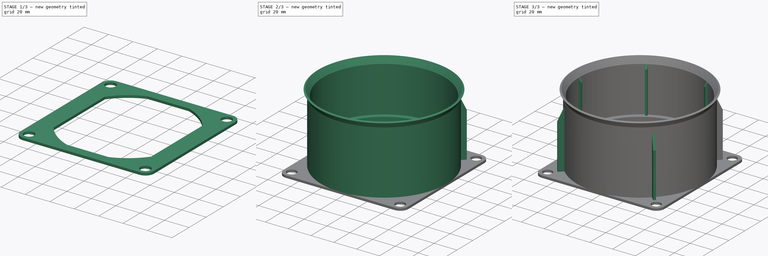
[diagram: build sequence overview — one tinted view per stage of 3, left to right]
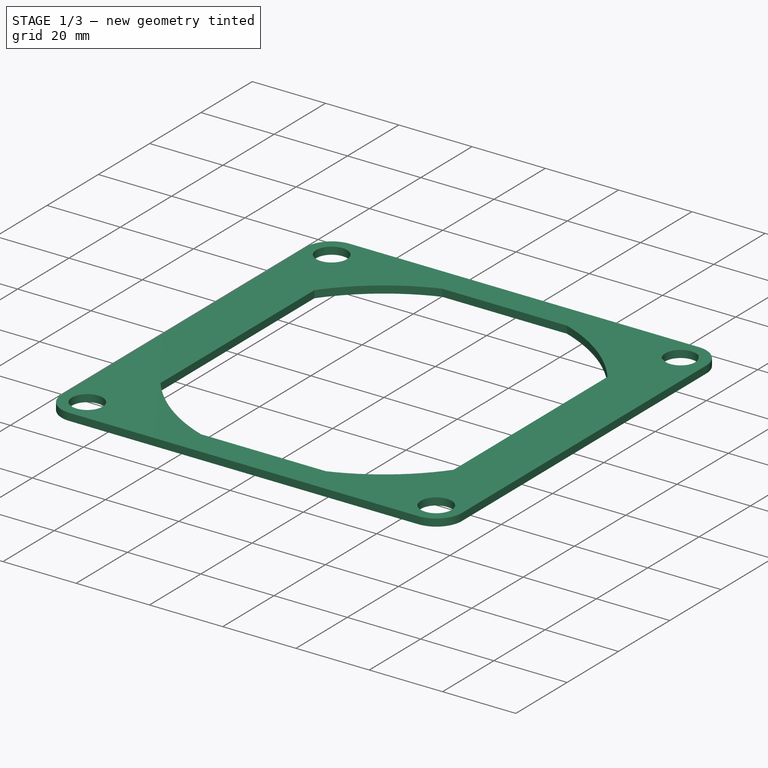
[diagram: stage 1 of 3 — iso view after this stage's code; geometry added in this stage tinted green]
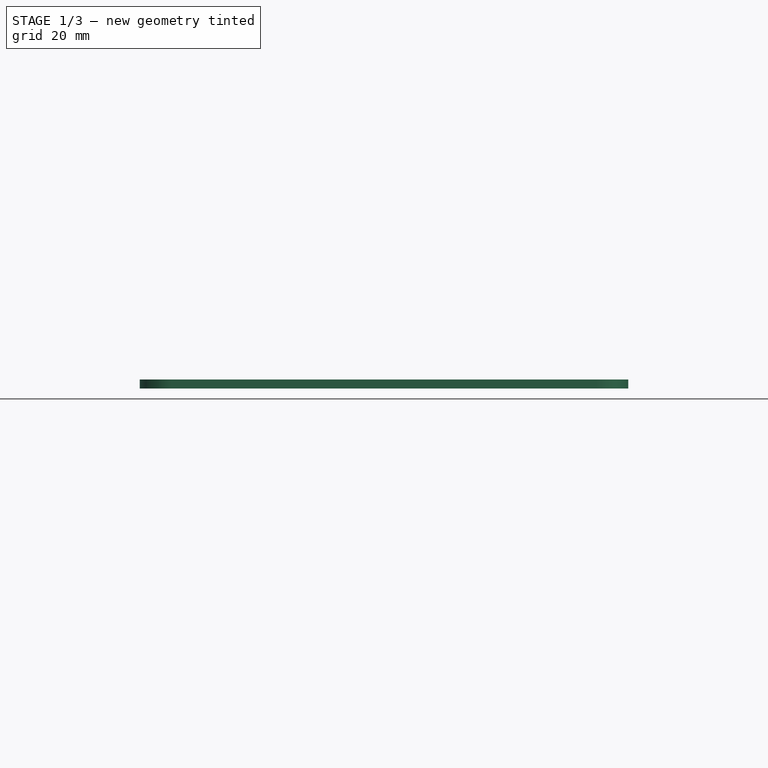
[diagram: stage 1 of 3 — front view after this stage's code; geometry added in this stage tinted green]
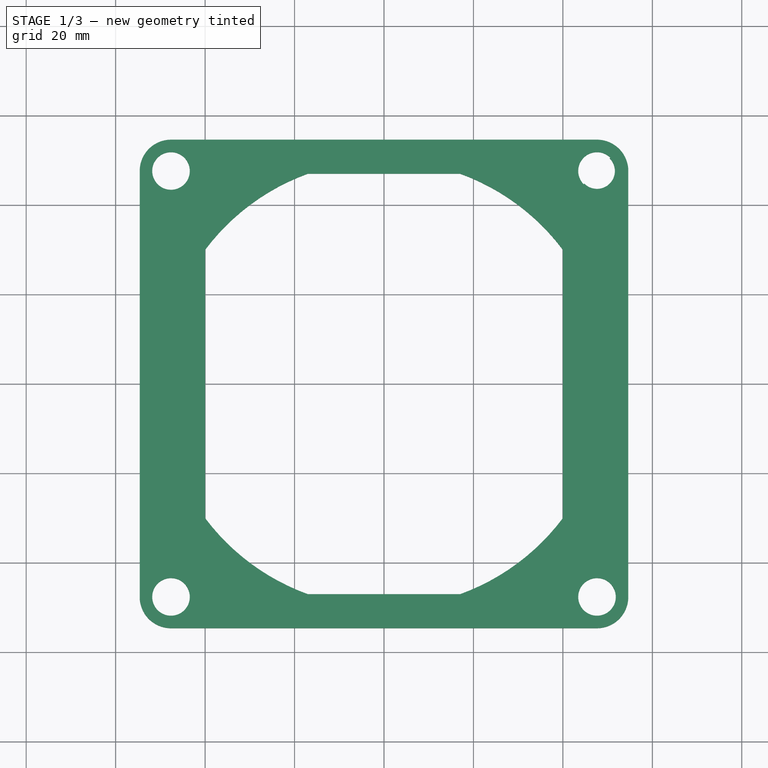
[diagram: stage 1 of 3 — top view after this stage's code; geometry added in this stage tinted green]
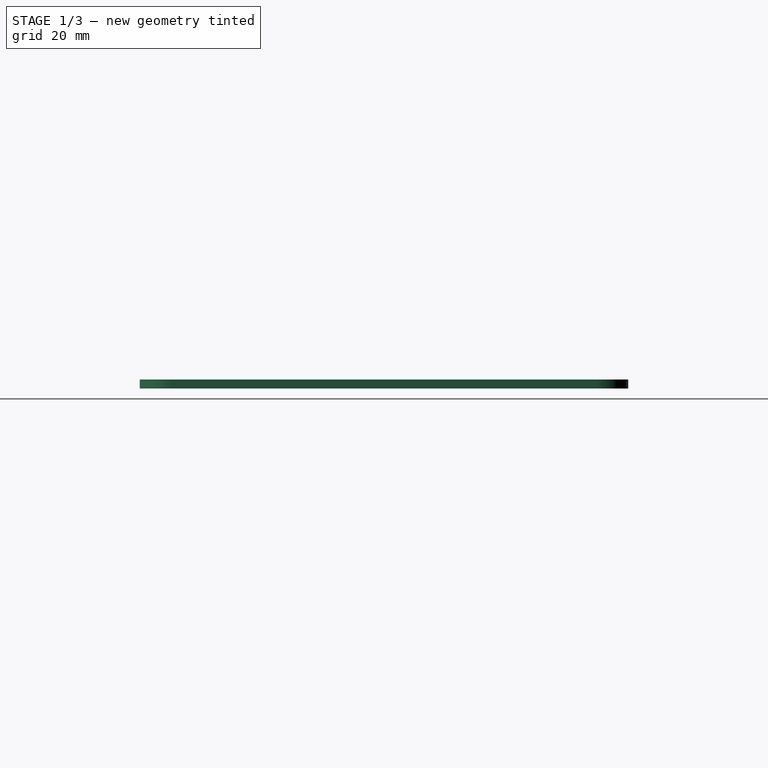
[diagram: stage 1 of 3 — right view after this stage's code; geometry added in this stage tinted green]
FCSTD DOCUMENT  (FreeCAD 0.19R24291 (Git))
Label: Фланец подложек
License: All rights reserved
LicenseURL: http://en.wikipedia.org/wiki/All_rights_reserved
objects: Sketcher::SketchObject×7, PartDesign::Mirrored×4, PartDesign::Revolution×3, PartDesign::MultiTransform×3, PartDesign::Pad×2, PartDesign::PolarPattern×2, PartDesign::Body×2, PartDesign::Plane×1
note: 29 computed .brp shape members not serialized (recipe doc carries the construction recipe); baked Part::Feature solids carry a one-line shape summary decoded from their .brp

FEATURE [Sketcher::SketchObject] Sketch
  FullyConstrained = false
  MapMode = 5
  Support = -> [XY_Plane]
  sketch-geometry (8):
    g0: LineSegment StartX=0 StartY=0 StartZ=0 EndX=84.7475 EndY=84.7475 EndZ=0
    g1: ArcOfCircle CenterX=47.625 CenterY=47.625 CenterZ=0 NormalX=0 NormalY=0 NormalZ=1 AngleXU=0 Radius=4 StartAngle=3.92699 EndAngle=7.06858
    g2: ArcOfCircle CenterX=47.625 CenterY=47.625 CenterZ=0 NormalX=0 NormalY=0 NormalZ=1 AngleXU=0 Radius=7 StartAngle=6.28319 EndAngle=7.06858
    g3: LineSegment StartX=54.625 StartY=47.625 StartZ=0 EndX=54.625 EndY=0 EndZ=0
    g4: ArcOfCircle CenterX=0 CenterY=0 CenterZ=0 NormalX=0 NormalY=0 NormalZ=1 AngleXU=0 Radius=50 StartAngle=0 EndAngle=0.785398
    g5: LineSegment StartX=35.3553 StartY=35.3553 StartZ=0 EndX=44.7966 EndY=44.7966 EndZ=0
    g6: LineSegment StartX=50.4534 StartY=50.4534 StartZ=0 EndX=52.5747 EndY=52.5747 EndZ=0
    g7: LineSegment StartX=50 StartY=0 StartZ=0 EndX=54.625 EndY=0 EndZ=0
  constraints (24):
    c: Coincident(g0,g-1)
    c: Angle(g-1,g0) = 0.785398
    c: PointOnObject(g1,g0)
    c: PointOnObject(g1,g0)
    c: PointOnObject(g1,g0)
    c: Distance(g1,g-1) = 47.625
    c: Diameter(g1) = 8
    c: Coincident(g2,g1)
    c: PointOnObject(g2,g0)
    c: Coincident(g3,g2)
    c: PointOnObject(g3,g-1)
    c: Vertical(g3)
    c: Diameter(g2) = 14
    c: Tangent(g2,g3)
    c: Coincident(g4,g-1)
    c: PointOnObject(g4,g-1)
    c: PointOnObject(g4,g0)
    c: Diameter(g4) = 100
    c: Coincident(g5,g4)
    c: Coincident(g5,g1)
    c: Coincident(g6,g1)
    c: Coincident(g6,g2)
    c: Coincident(g7,g4)
    c: Coincident(g7,g3)
FEATURE [PartDesign::Pad] Pad
  Direction = (1,1,1)
  Length = 2
  Length2 = 100
  Profile = -> Sketch
  Reversed = true
  Type = 0
FEATURE [PartDesign::Body] Body
  Group = -> [Sketch,Pad,Sketch001,Revolution,Sketch002,Revolution001,MultiTransform,Mirrored,PolarPattern,DatumPlane,Sketch003,Sketch004,Sketch005,Revolution002,MultiTransform001,Mirrored001,PolarPattern001]
  Origin = -> Origin
  Tip = -> MultiTransform001
FEATURE [Sketcher::SketchObject] Sketch006
  FullyConstrained = true
  MapMode = 5
  Support = -> [XY_Plane001]
  sketch-geometry (16):
    g0: ArcOfCircle CenterX=0 CenterY=0 CenterZ=0 NormalX=0 NormalY=0 NormalZ=1 AngleXU=0 Radius=50 StartAngle=1.5708 EndAngle=1.88025
    g1: LineSegment StartX=-40 StartY=6.1e-15 StartZ=0 EndX=-40 EndY=30 EndZ=0
    g2: GeomPoint X=-50 Y=6.1e-15 Z=0
    g3: LineSegment StartX=3.1e-15 StartY=50 StartZ=0 EndX=3.1e-15 EndY=47 EndZ=0
    g4: LineSegment StartX=3.1e-15 StartY=47 StartZ=0 EndX=-17.0587 EndY=47 EndZ=0
    g5: LineSegment StartX=-40 StartY=6.1e-15 StartZ=0 EndX=-50 EndY=6.1e-15 EndZ=0
    g6: Circle CenterX=-47.625 CenterY=47.625 CenterZ=0 NormalX=0 NormalY=0 NormalZ=1 AngleXU=0 Radius=4.2
    g7: LineSegment StartX=-47.625 StartY=47.625 StartZ=0 EndX=-47.625 EndY=0 EndZ=0
    g8: LineSegment StartX=-47.625 StartY=47.625 StartZ=0 EndX=0 EndY=47.625 EndZ=0
    g9: ArcOfCircle CenterX=-47.625 CenterY=47.625 CenterZ=0 NormalX=0 NormalY=0 NormalZ=1 AngleXU=0 Radius=7 StartAngle=1.57079 EndAngle=3.1416
    g10: LineSegment StartX=-47.625 StartY=54.625 StartZ=0 EndX=0 EndY=54.625 EndZ=0
    g11: LineSegment StartX=-54.625 StartY=47.625 StartZ=0 EndX=-54.625 EndY=0 EndZ=0
    g12: ArcOfCircle CenterX=0 CenterY=0 CenterZ=0 NormalX=0 NormalY=0 NormalZ=1 AngleXU=0 Radius=50 StartAngle=2.83214 EndAngle=3.14159
    g13: LineSegment StartX=-54.625 StartY=0 StartZ=0 EndX=-50 EndY=6.1e-15 EndZ=0
    g14: LineSegment StartX=3.1e-15 StartY=50 StartZ=0 EndX=0 EndY=54.625 EndZ=0
    g15: ArcOfCircle CenterX=0 CenterY=0 CenterZ=0 NormalX=0 NormalY=0 NormalZ=1 AngleXU=0 Radius=50 StartAngle=1.91896 EndAngle=2.49809
  constraints (46):
    c: Coincident(g0,g-1)
    c: Diameter(g0) = 100
    c: Vertical(g1)
    c: PointOnObject(g2,g-1)
    c: Distance(g2,g1) = 10
    c: PointOnObject(g3,g-2)
    c: Vertical(g3)
    c: Coincident(g4,g3)
    c: Horizontal(g4)
    c: Coincident(g5,g2)
    c: Horizontal(g5)
    c: Distance(g3) = 3
    c: Coincident(g1,g5)
    c: Coincident(g0,g3)
    c: Coincident(g12,g5)
    c: Coincident(g7,g6)
    c: PointOnObject(g7,g-1)
    c: Vertical(g7)
    c: Coincident(g8,g6)
    c: PointOnObject(g8,g-2)
    c: Horizontal(g8)
    c: Equal(g7,g8)
    c: Distance(g8) = 47.625
    c: Diameter(g6) = 8.4
    c: Coincident(g9,g6)
    c: Coincident(g10,g9)
    c: PointOnObject(g10,g-2)
    c: Horizontal(g10)
    c: Coincident(g11,g9)
    c: PointOnObject(g11,g-1)
    c: Vertical(g11)
    c: Tangent(g10,g9)
    c: Tangent(g11,g9)
    c: Equal(g0,g12)
    c: Coincident(g15,g1)
    c: PointOnObject(g12,g7)
    c: Coincident(g0,g12)
    c: Coincident(g13,g11)
    c: Coincident(g13,g5)
    c: Coincident(g14,g0)
    c: Coincident(g14,g10)
    c: Equal(g0,g15)
    c: PointOnObject(g0,g8)
    c: Coincident(g15,g4)
    c: Coincident(g0,g15)
    c: Diameter(g9) = 14
FEATURE [PartDesign::Pad] Pad001
  Direction = (1,1,1)
  Length = 2
  Length2 = 100
  Profile = -> Sketch006
  Reversed = true
  Type = 0
FEATURE [PartDesign::Mirrored] Mirrored002
  MirrorPlane = -> Sketch006 [V_Axis]
FEATURE [PartDesign::Mirrored] Mirrored003
  MirrorPlane = -> Sketch006 [H_Axis]
FEATURE [PartDesign::MultiTransform] MultiTransform002
  BaseFeature = -> Pad001
  Originals = -> [Pad001]
  Transformations = -> [Mirrored002,Mirrored003]
FEATURE [PartDesign::Body] Body001
  Group = -> [Sketch006,Pad001,MultiTransform002,Mirrored002,Mirrored003]
  Origin = -> Origin001
  Tip = -> MultiTransform002
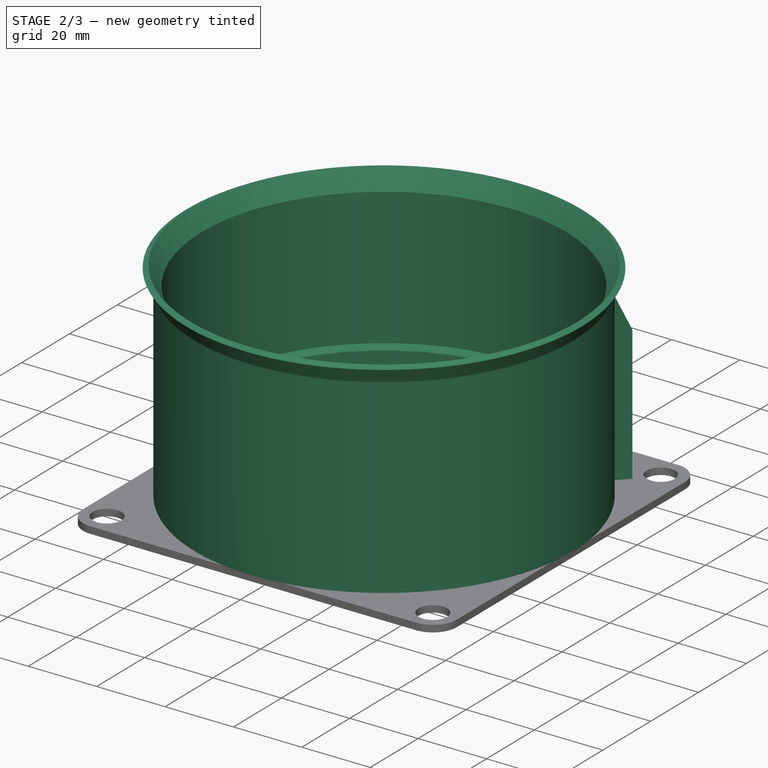
[diagram: stage 2 of 3 — iso view after this stage's code; geometry added in this stage tinted green]
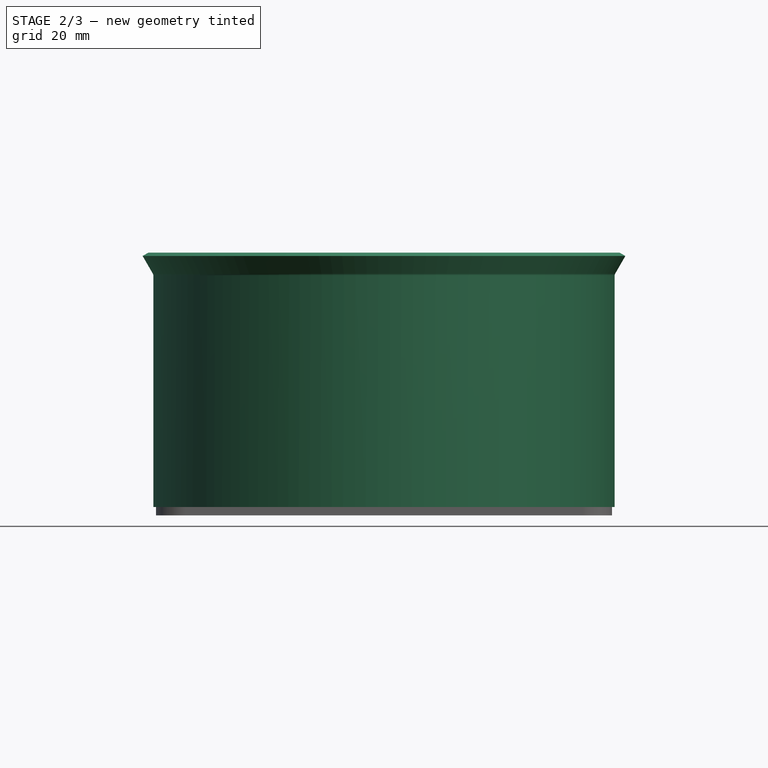
[diagram: stage 2 of 3 — front view after this stage's code; geometry added in this stage tinted green]
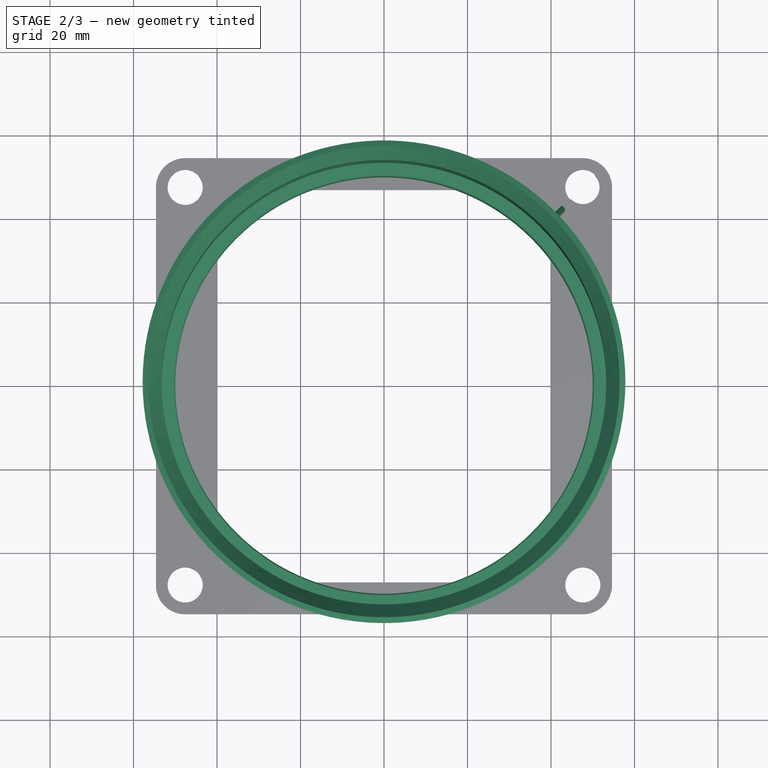
[diagram: stage 2 of 3 — top view after this stage's code; geometry added in this stage tinted green]
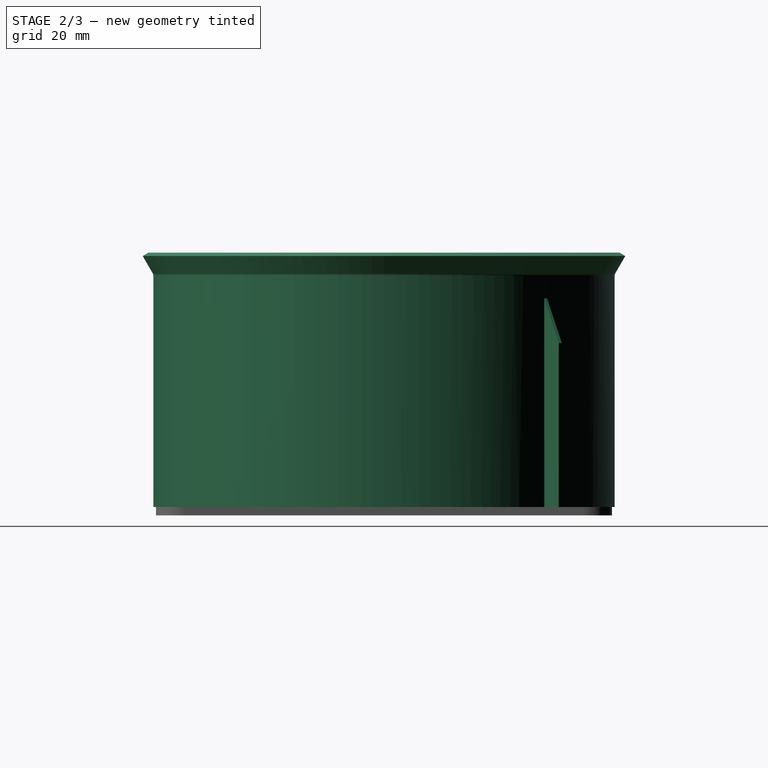
[diagram: stage 2 of 3 — right view after this stage's code; geometry added in this stage tinted green]
FEATURE [Sketcher::SketchObject] Sketch001
  FullyConstrained = false
  MapMode = 5
  Placement = pos=(0,0,0) rot=(1,0,0;1.5708rad)
  Support = -> [XZ_Plane]
  sketch-geometry (10):
    g0: LineSegment StartX=50 StartY=0 StartZ=0 EndX=50 EndY=15 EndZ=0
    g1: LineSegment StartX=50 StartY=15 StartZ=0 EndX=50.2903 EndY=15.4338 EndZ=0
    g2: LineSegment StartX=50.2903 StartY=15.4338 StartZ=0 EndX=53.25 EndY=15.4338 EndZ=0
    g3: LineSegment StartX=53.25 StartY=15.4338 StartZ=0 EndX=53.25 EndY=55.4338 EndZ=0
    g4: LineSegment StartX=53.25 StartY=55.4338 StartZ=0 EndX=56.4314 EndY=60.9441 EndZ=0
    g5: LineSegment StartX=55.25 StartY=55.4574 StartZ=0 EndX=55.25 EndY=0 EndZ=0
    g6: LineSegment StartX=55.25 StartY=0 StartZ=0 EndX=50 EndY=0 EndZ=0
    g7: ArcOfCircle CenterX=56.1476 CenterY=55.4574 CenterZ=0 NormalX=0 NormalY=0 NormalZ=1 AngleXU=0 Radius=0.897636 StartAngle=2.618 EndAngle=3.14159
    g8: LineSegment StartX=55.3703 StartY=55.9062 StartZ=0 EndX=57.817 EndY=60.1441 EndZ=0
    g9: LineSegment StartX=57.817 StartY=60.1441 StartZ=0 EndX=56.4314 EndY=60.9441 EndZ=0
  constraints (28):
    c: PointOnObject(g0,g-1)
    c: Vertical(g0)
    c: Coincident(g0,g1)
    c: Coincident(g1,g2)
    c: Horizontal(g2)
    c: Coincident(g2,g3)
    c: Vertical(g3)
    c: Coincident(g3,g4)
    c: PointOnObject(g5,g-1)
    c: Vertical(g5)
    c: Coincident(g5,g6)
    c: Coincident(g6,g0)
    c: Distance(g0,g-2) = 50
    c: Distance(g3,g5) = 2
    c: Distance(g2,g-2) = 53.25
    c: Distance(g0) = 15
    c: DistanceX(g0,g2) = 3.25
    c: Angle(g3,g4) = 2.61799
    c: Distance(g3) = 40
    c: Coincident(g7,g5)
    c: Coincident(g8,g7)
    c: Coincident(g9,g8)
    c: Coincident(g9,g4)
    c: Parallel(g8,g4)
    c: Distance(g9) = 1.6
    c: Tangent(g7,g5)
    c: Tangent(g7,g8)
    c: Perpendicular(g8,g9)
FEATURE [PartDesign::Revolution] Revolution
  Angle = 360
  Axis = (0,2e-16,1)
  Base = (0,0,0)
  BaseFeature = -> Pad
  Profile = -> Sketch001
  ReferenceAxis = -> Sketch001 [V_Axis]
  Reversed = true
FEATURE [Sketcher::SketchObject] Sketch002
  ExternalGeometry = -> [Revolution]
  FullyConstrained = true
  MapMode = 5
  Placement = pos=(5e-15,-5e-15,0) rot=(-0.281085,0.678598,0.678598;3.68962rad)
  Support = -> [Revolution]
  sketch-geometry (4):
    g0: LineSegment StartX=-55.25 StartY=-8.7e-15 StartZ=0 EndX=-55.25 EndY=50 EndZ=0
    g1: LineSegment StartX=-55.25 StartY=50 StartZ=0 EndX=-60.25 EndY=39.2775 EndZ=0
    g2: LineSegment StartX=-60.25 StartY=39.2775 StartZ=0 EndX=-60.25 EndY=0 EndZ=0
    g3: LineSegment StartX=-60.25 StartY=0 StartZ=0 EndX=-55.25 EndY=-8.7e-15 EndZ=0
  constraints (11):
    c: Vertical(g0)
    c: Coincident(g0,g1)
    c: Coincident(g1,g2)
    c: PointOnObject(g2,g-1)
    c: Vertical(g2)
    c: Coincident(g2,g3)
    c: Coincident(g3,g0)
    c: Distance(g3) = 5
    c: Distance(g0) = 50
    c: Angle(g1,g0) = 0.436332
    c: Coincident(g0,g-3)
FEATURE [PartDesign::Revolution] Revolution001
  Angle = 1
  Axis = (0,0,1)
  Base = (5e-15,-5e-15,0)
  BaseFeature = -> Revolution
  Profile = -> Sketch002
  ReferenceAxis = -> Sketch002 [V_Axis]
  Reversed = true
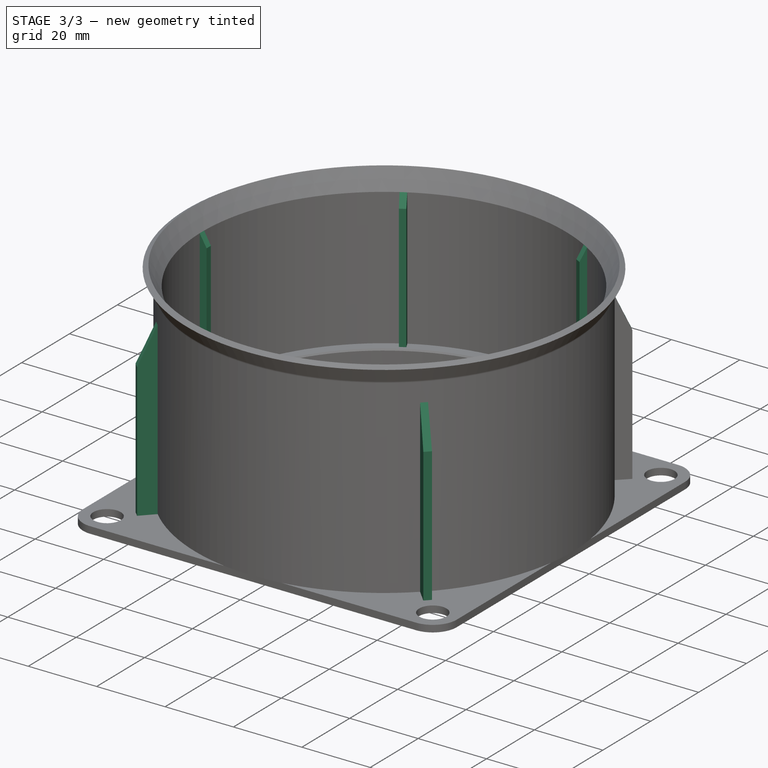
[diagram: stage 3 of 3 — iso view after this stage's code; geometry added in this stage tinted green]
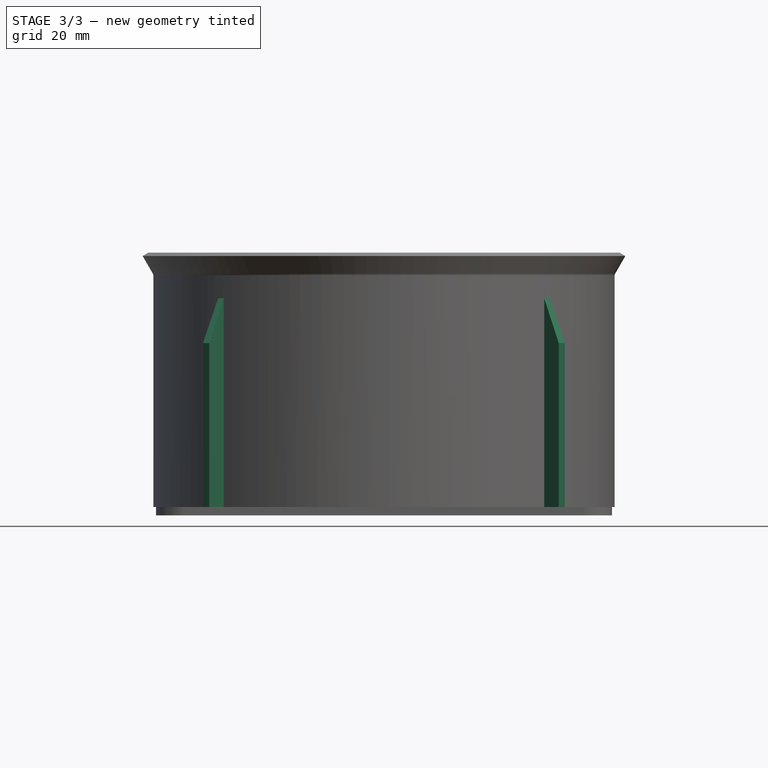
[diagram: stage 3 of 3 — front view after this stage's code; geometry added in this stage tinted green]
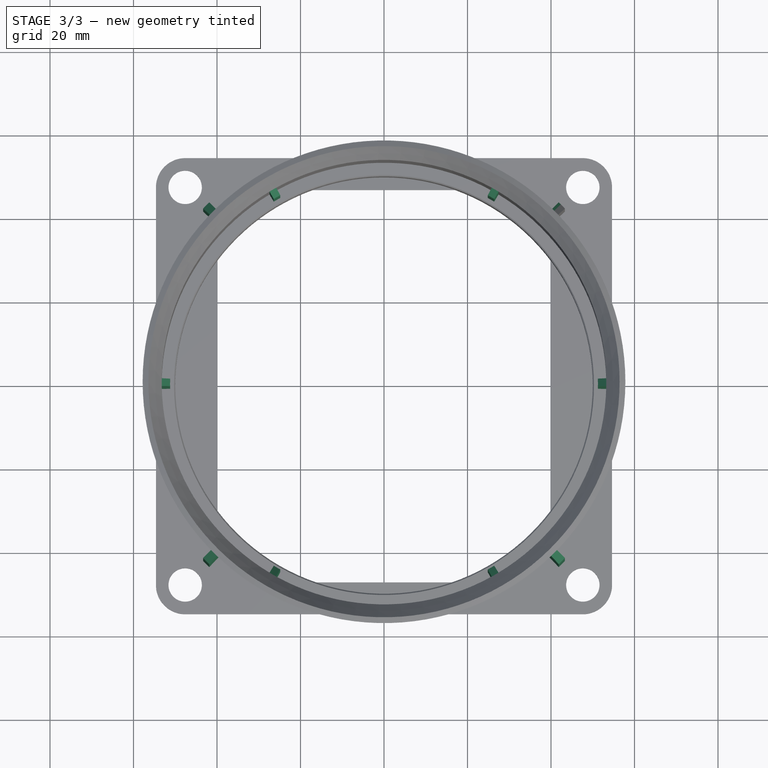
[diagram: stage 3 of 3 — top view after this stage's code; geometry added in this stage tinted green]
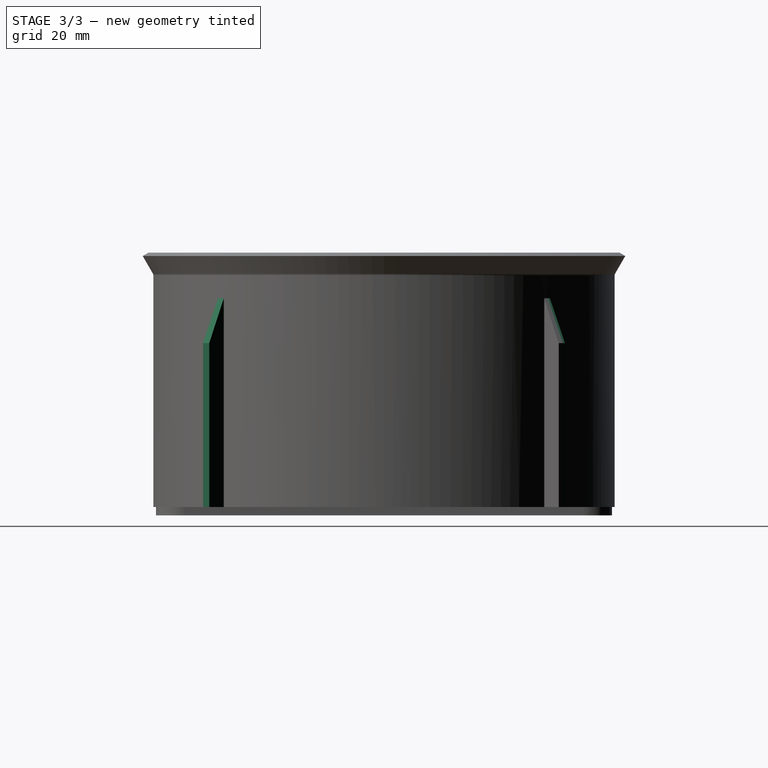
[diagram: stage 3 of 3 — right view after this stage's code; geometry added in this stage tinted green]
FEATURE [PartDesign::Mirrored] Mirrored001
  MirrorPlane = -> XZ_Plane
FEATURE [PartDesign::Mirrored] Mirrored
  MirrorPlane = -> Sketch [H_Axis]
FEATURE [PartDesign::PolarPattern] PolarPattern
  Angle = 360
  Axis = -> Sketch [N_Axis]
  Occurrences = 4
FEATURE [PartDesign::MultiTransform] MultiTransform
  BaseFeature = -> Revolution001
  Originals = -> [Pad,Revolution001]
  Transformations = -> [Mirrored,PolarPattern]
FEATURE [PartDesign::Plane] DatumPlane
  AttachmentOffset = pos=(0,0,0) rot=(0,1,0;1.5708rad)
  Length = 142.673
  MapMode = 7
  Placement = pos=(-47.625,-54.625,0) rot=(-1,0,0;4.71239rad)
  ResizeMode = 0
  Support = -> [MultiTransform]
  Width = 184.385
FEATURE [Sketcher::SketchObject] Sketch003
  FullyConstrained = false
  MapMode = 5
  Placement = pos=(-47.625,-54.625,0) rot=(1,0,0;1.5708rad)
  Support = -> [DatumPlane]
  sketch-geometry (4):
    g0: ArcOfCircle CenterX=37.7568 CenterY=0 CenterZ=0 NormalX=0 NormalY=0 NormalZ=1 AngleXU=0 Radius=10 StartAngle=4.71239 EndAngle=7.85398
    g1: LineSegment StartX=37.7568 StartY=10 StartZ=0 EndX=0 EndY=10 EndZ=0
    g2: LineSegment StartX=37.7568 StartY=-10 StartZ=0 EndX=0 EndY=-10 EndZ=0
    g3: LineSegment StartX=0 StartY=-10 StartZ=0 EndX=0 EndY=10 EndZ=0
  constraints (10):
    c: PointOnObject(g0,g-1)
    c: Diameter(g0) = 20
    c: Tangent(g0,g1) = -1.5708
    c: Tangent(g0,g2) = 1.5708
    c: Coincident(g2,g3)
    c: PointOnObject(g3,g-2)
    c: Vertical(g3)
    c: Horizontal(g1)
    c: Horizontal(g2)
    c: Coincident(g3,g1)
FEATURE [Sketcher::SketchObject] Sketch004
  ExternalGeometry = -> [MultiTransform]
  FullyConstrained = false
  MapMode = 5
  Placement = pos=(-47.625,-54.625,0) rot=(1,0,0;1.5708rad)
  Support = -> [DatumPlane]
  sketch-geometry (8):
    g0: LineSegment StartX=92.9153 StartY=69.3905 StartZ=0 EndX=-10.2428 EndY=69.3905 EndZ=0
    g1: LineSegment StartX=-10.2428 StartY=69.3905 StartZ=0 EndX=-10.2428 EndY=-65.5211 EndZ=0
    g2: LineSegment StartX=-10.2428 StartY=-65.5211 StartZ=0 EndX=92.9153 EndY=-65.5211 EndZ=0
    g3: LineSegment StartX=92.9153 StartY=-65.5211 StartZ=0 EndX=92.9153 EndY=69.3905 EndZ=0
    g4: LineSegment StartX=92.625 StartY=75.8693 StartZ=0 EndX=86.9393 EndY=75.8693 EndZ=0
    g5: LineSegment StartX=86.9393 StartY=75.8693 StartZ=0 EndX=86.9393 EndY=-81.5275 EndZ=0
    g6: LineSegment StartX=86.9393 StartY=-81.5275 StartZ=0 EndX=92.625 EndY=-81.5275 EndZ=0
    g7: LineSegment StartX=92.625 StartY=-81.5275 StartZ=0 EndX=92.625 EndY=75.8693 EndZ=0
  constraints (18):
    c: Coincident(g0,g1)
    c: Coincident(g1,g2)
    c: Coincident(g2,g3)
    c: Coincident(g3,g0)
    c: Horizontal(g0)
    c: Horizontal(g2)
    c: Vertical(g1)
    c: Vertical(g3)
    c: Coincident(g4,g5)
    c: Coincident(g5,g6)
    c: Coincident(g6,g7)
    c: Coincident(g7,g4)
    c: Horizontal(g4)
    c: Horizontal(g6)
    c: Vertical(g5)
    c: Vertical(g7)
    c: Distance(g-4,g7) = 5
    c: Distance(g-3,g3) = 5
FEATURE [Sketcher::SketchObject] Sketch005
  ExternalGeometry = -> [MultiTransform]
  FullyConstrained = true
  MapMode = 5
  Placement = pos=(0,0,0) rot=(1,0,0;1.5708rad)
  Support = -> [XZ_Plane]
  sketch-geometry (4):
    g0: LineSegment StartX=51.25 StartY=15.4338 StartZ=0 EndX=51.25 EndY=51.9697 EndZ=0
    g1: LineSegment StartX=53.25 StartY=55.4338 StartZ=0 EndX=53.25 EndY=15.4338 EndZ=0
    g2: LineSegment StartX=53.25 StartY=15.4338 StartZ=0 EndX=51.25 EndY=15.4338 EndZ=0
    g3: LineSegment StartX=53.25 StartY=55.4338 StartZ=0 EndX=51.25 EndY=51.9697 EndZ=0
  constraints (10):
    c: Coincident(g2,g1)
    c: Coincident(g2,g0)
    c: Horizontal(g2)
    c: Vertical(g0)
    c: Coincident(g1,g-3)
    c: Coincident(g3,g1)
    c: Coincident(g3,g0)
    c: Distance(g0,g1) = 2
    c: Coincident(g1,g-3)
    c: Angle(g3,g1) = 0.523599
FEATURE [PartDesign::Revolution] Revolution002
  Angle = 1
  Axis = (0,2e-16,1)
  Base = (0,0,0)
  BaseFeature = -> MultiTransform
  Profile = -> Sketch005
  ReferenceAxis = -> Sketch005 [V_Axis]
  Reversed = true
FEATURE [PartDesign::PolarPattern] PolarPattern001
  Angle = 360
  Axis = -> Sketch005 [V_Axis]
  Occurrences = 6
FEATURE [PartDesign::MultiTransform] MultiTransform001
  BaseFeature = -> Revolution002
  Originals = -> [Revolution002]
  Transformations = -> [Mirrored001,PolarPattern001]
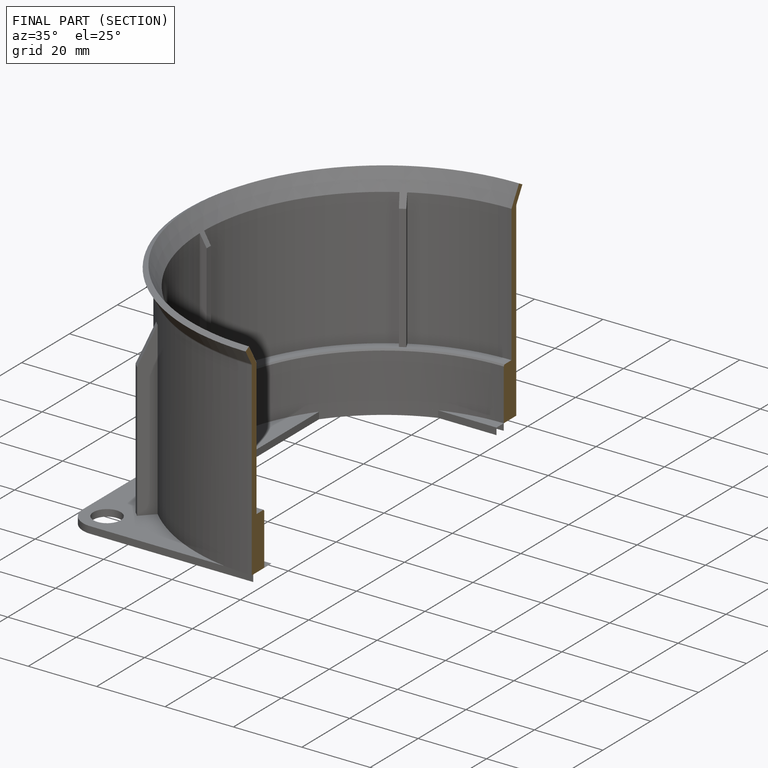
[diagram: finished part — half-section view (interior)]
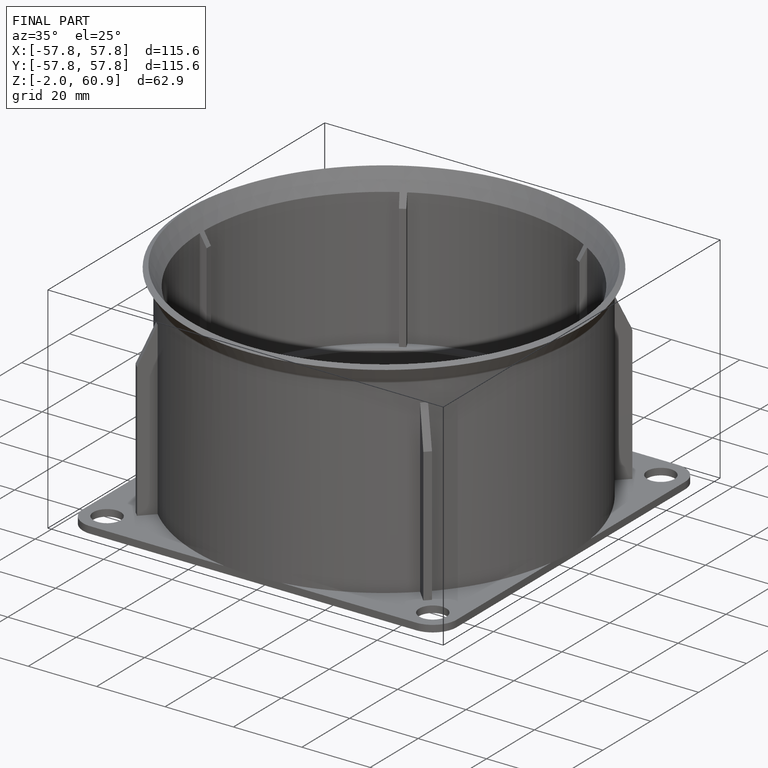
[diagram: finished part — iso view with bounding-box wireframe]
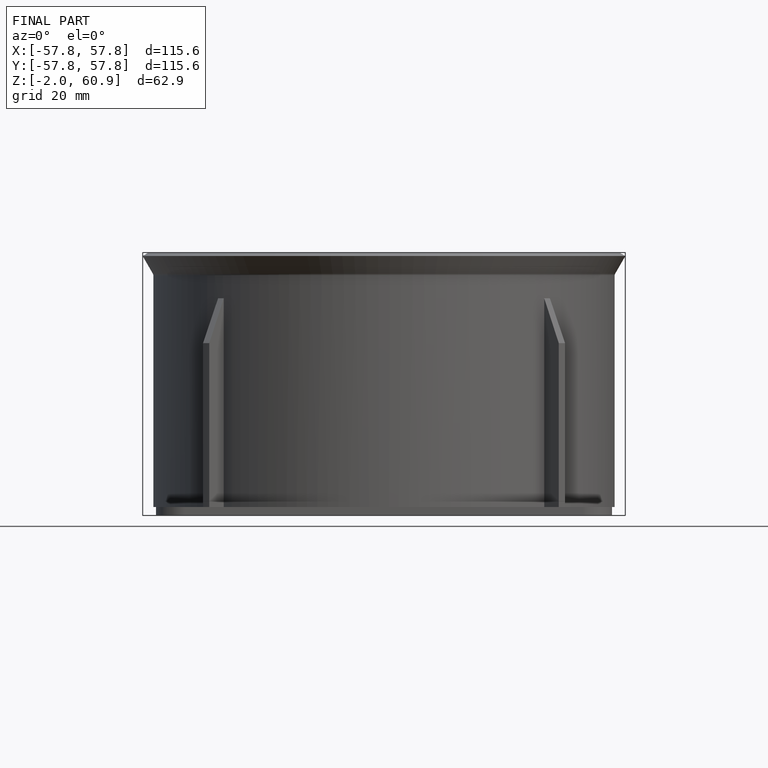
[diagram: finished part — front view with bounding-box wireframe]
